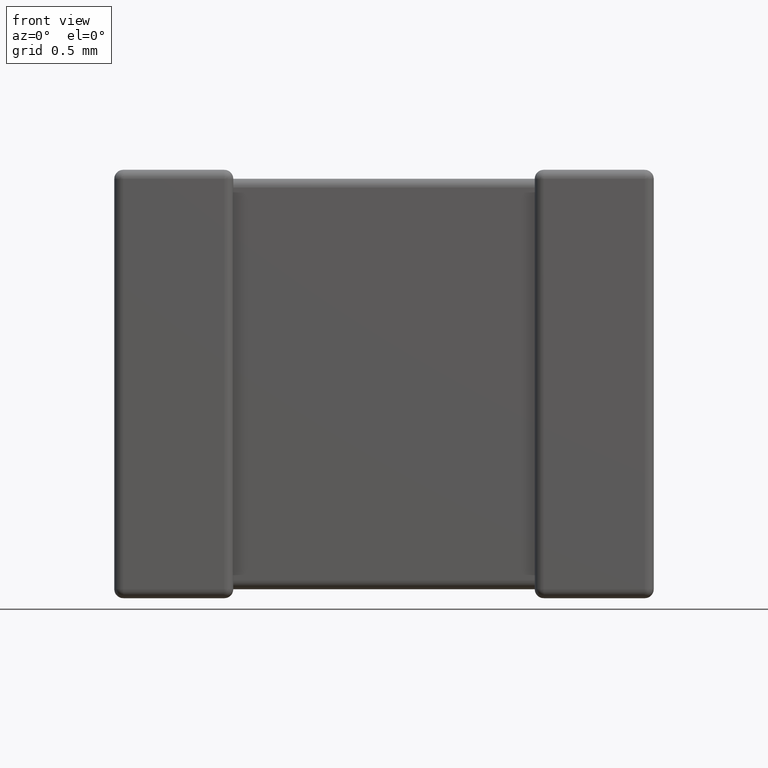
[diagram: clean part render]
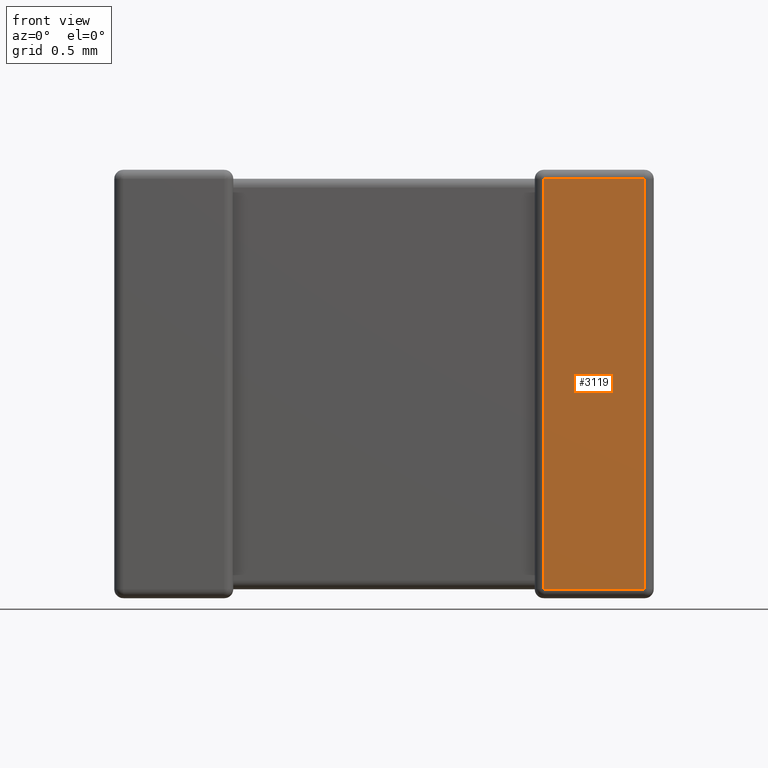
[diagram: same view with one face highlighted and labeled with its STEP entity id]
A machine part, front view. The second image highlights one B-rep face of the part: STEP entity #3119.
In plain terms, the highlighted planar face has unit normal (-0, 1, 0).
Its self-contained STEP definition (entity closure, byte-faithful):
#143 = DIRECTION ( 'NONE',  ( -1.000000000000000000, 0.000000000000000000, 0.000000000000000000 ) ) ;
#192 = LINE ( 'NONE', #4496, #1382 ) ;
#248 = CARTESIAN_POINT ( 'NONE',  ( 2.706160000000000565, 0.000000000000000000, -0.05616000000000000159 ) ) ;
#413 = CARTESIAN_POINT ( 'NONE',  ( 2.706160000000000565, 0.000000000000000000, 0.000000000000000000 ) ) ;
#817 = CARTESIAN_POINT ( 'NONE',  ( 3.343840000000000146, 0.000000000000000000, -0.05616000000000000159 ) ) ;
#1183 = DIRECTION ( 'NONE',  ( 0.000000000000000000, -0.000000000000000000, 1.000000000000000000 ) ) ;
#1204 = DIRECTION ( 'NONE',  ( -0.000000000000000000, 1.000000000000000000, 0.000000000000000000 ) ) ;
#1206 = VERTEX_POINT ( 'NONE', #248 ) ;
#1230 = ORIENTED_EDGE ( 'NONE', *, *, #2935, .T. ) ;
#1245 = VECTOR ( 'NONE', #3230, 1000.000000000000000 ) ;
#1307 = CARTESIAN_POINT ( 'NONE',  ( 3.343840000000000146, 0.000000000000000000, 0.000000000000000000 ) ) ;
#1382 = VECTOR ( 'NONE', #143, 1000.000000000000000 ) ;
#1401 = ORIENTED_EDGE ( 'NONE', *, *, #3499, .T. ) ;
#1434 = DIRECTION ( 'NONE',  ( 0.000000000000000000, 0.000000000000000000, -1.000000000000000000 ) ) ;
#2153 = VERTEX_POINT ( 'NONE', #3934 ) ;
#2210 = EDGE_CURVE ( 'NONE', #1206, #2153, #3570, .T. ) ;
#2770 = DIRECTION ( 'NONE',  ( -0.000000000000000000, -0.000000000000000000, 1.000000000000000000 ) ) ;
#2935 = EDGE_CURVE ( 'NONE', #3387, #1206, #192, .T. ) ;
#2972 = ORIENTED_EDGE ( 'NONE', *, *, #3667, .T. ) ;
#2978 = VECTOR ( 'NONE', #2770, 1000.000000000000000 ) ;
#3119 = ADVANCED_FACE ( 'NONE', ( #4463 ), #3430, .F. ) ;
#3199 = LINE ( 'NONE', #4650, #1245 ) ;
#3230 = DIRECTION ( 'NONE',  ( 1.000000000000000000, 0.000000000000000000, -0.000000000000000000 ) ) ;
#3275 = CARTESIAN_POINT ( 'NONE',  ( 3.343840000000000146, 0.000000000000000000, -2.643839999999999968 ) ) ;
#3313 = VERTEX_POINT ( 'NONE', #3275 ) ;
#3387 = VERTEX_POINT ( 'NONE', #817 ) ;
#3430 = PLANE ( 'NONE',  #4176 ) ;
#3499 = EDGE_CURVE ( 'NONE', #3313, #3387, #3544, .T. ) ;
#3544 = LINE ( 'NONE', #1307, #2978 ) ;
#3570 = LINE ( 'NONE', #413, #4030 ) ;
#3667 = EDGE_CURVE ( 'NONE', #2153, #3313, #3199, .T. ) ;
#3934 = CARTESIAN_POINT ( 'NONE',  ( 2.706160000000000565, 0.000000000000000000, -2.643839999999999968 ) ) ;
#4030 = VECTOR ( 'NONE', #1434, 1000.000000000000000 ) ;
#4058 = CARTESIAN_POINT ( 'NONE',  ( 3.400000000000000355, 0.000000000000000000, 0.000000000000000000 ) ) ;
#4103 = ORIENTED_EDGE ( 'NONE', *, *, #2210, .T. ) ;
#4176 = AXIS2_PLACEMENT_3D ( 'NONE', #4058, #1204, #1183 ) ;
#4264 = EDGE_LOOP ( 'NONE', ( #1230, #4103, #2972, #1401 ) ) ;
#4463 = FACE_OUTER_BOUND ( 'NONE', #4264, .T. ) ;
#4496 = CARTESIAN_POINT ( 'NONE',  ( 3.400000000000000355, 0.000000000000000000, -0.05616000000000000159 ) ) ;
#4650 = CARTESIAN_POINT ( 'NONE',  ( 3.400000000000000355, 0.000000000000000000, -2.643839999999999968 ) ) ;